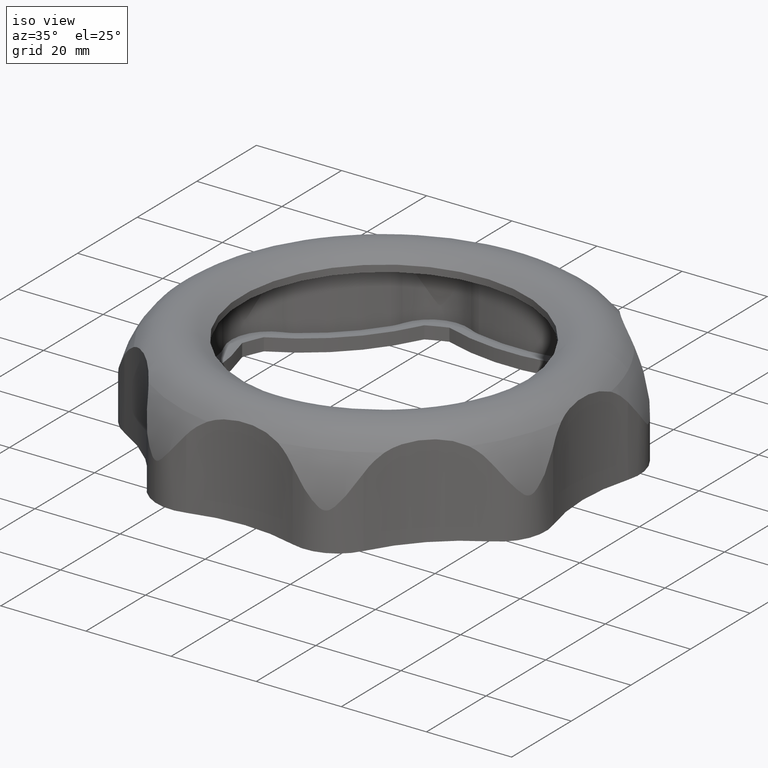
[diagram: clean part render]
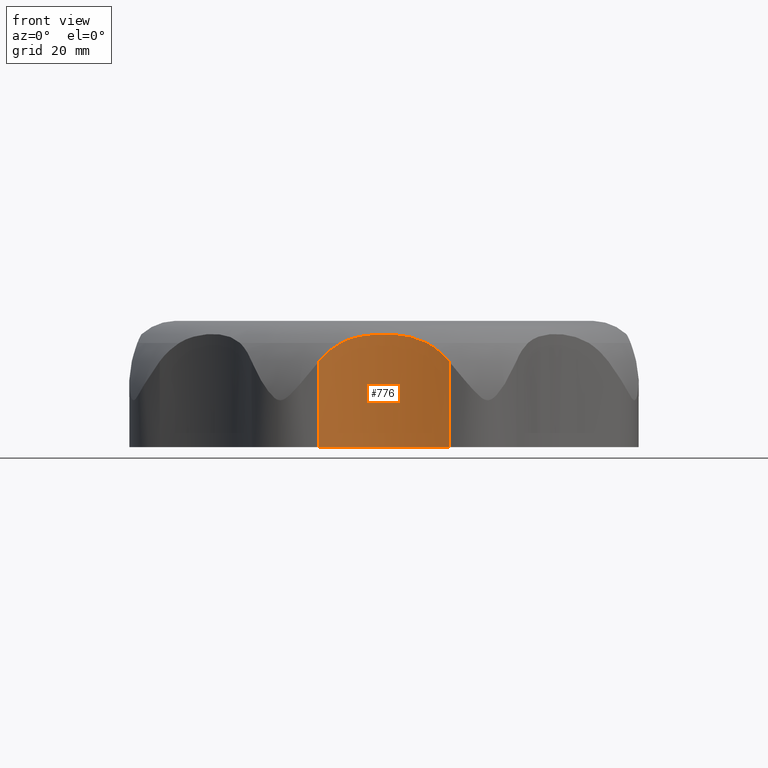
[diagram: tour spotlight — one face highlighted and labeled with its STEP entity id]
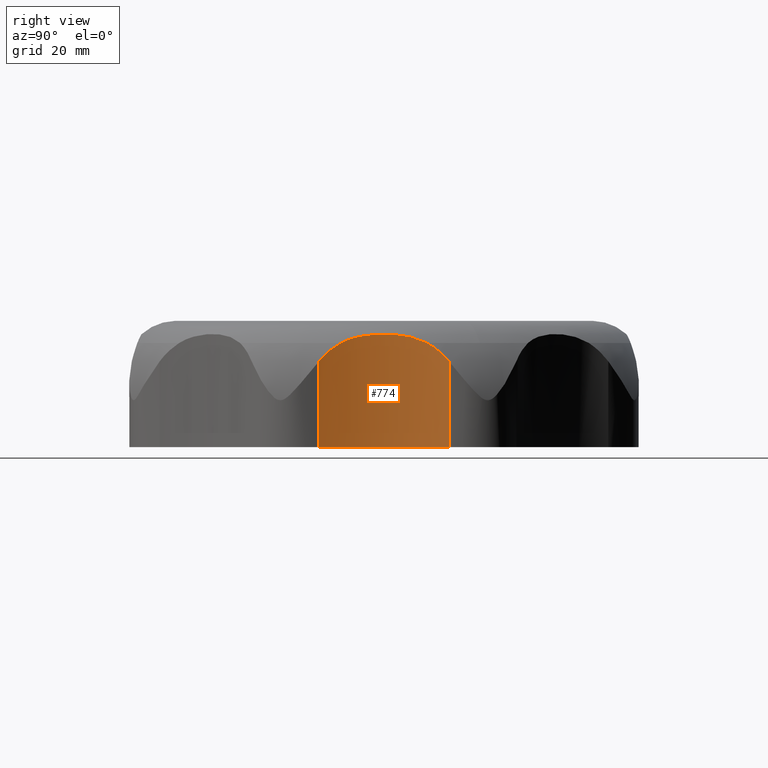
[diagram: tour spotlight — one face highlighted and labeled with its STEP entity id]
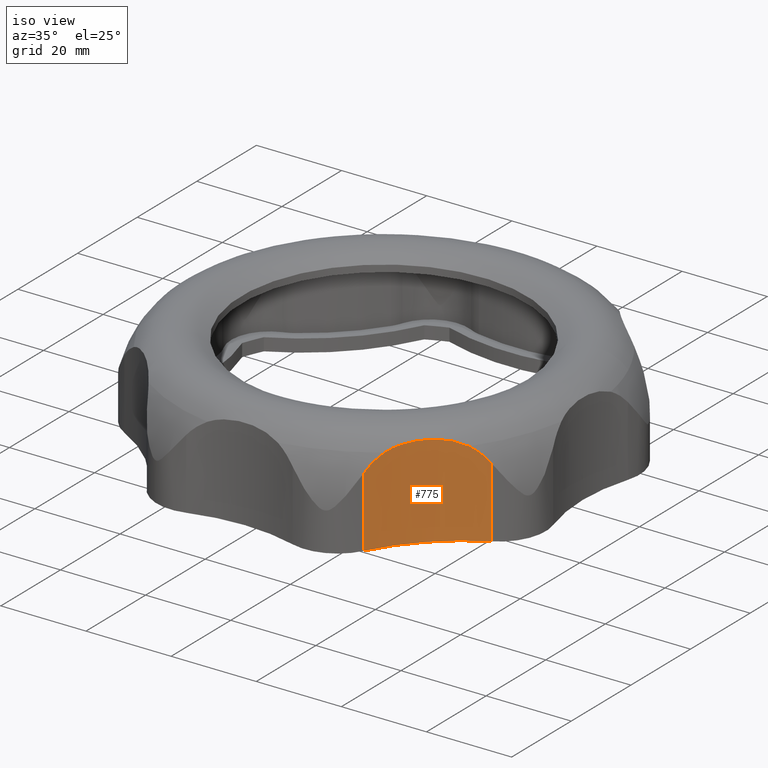
[diagram: tour spotlight — one face highlighted and labeled with its STEP entity id]
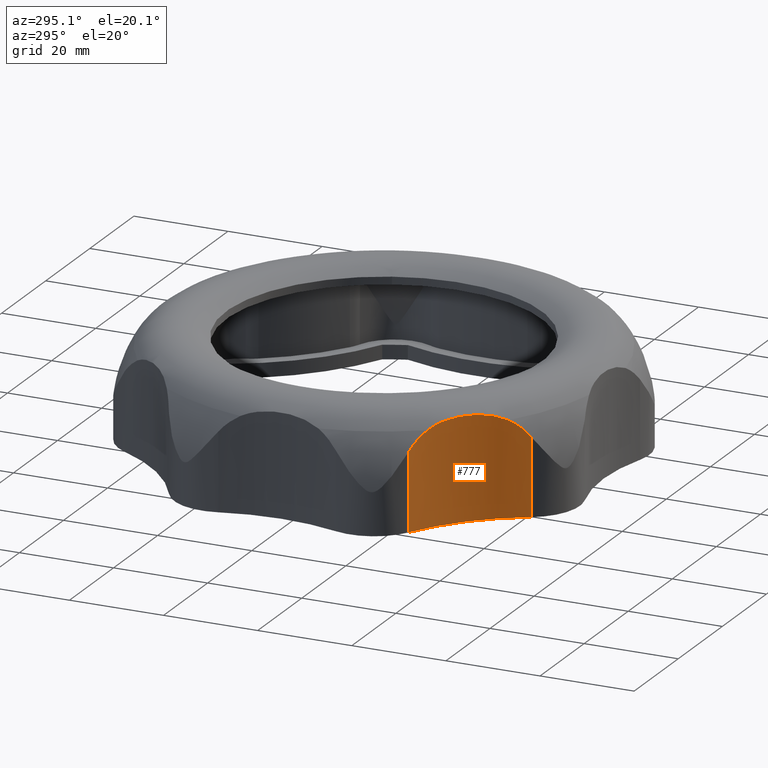
[diagram: tour spotlight — one face highlighted and labeled with its STEP entity id]
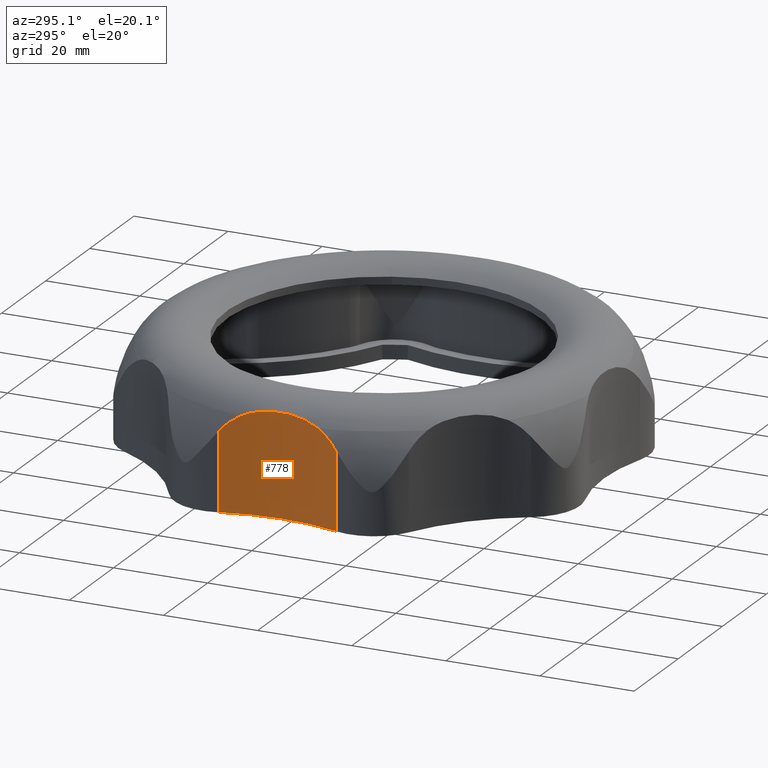
[diagram: tour spotlight — one face highlighted and labeled with its STEP entity id]
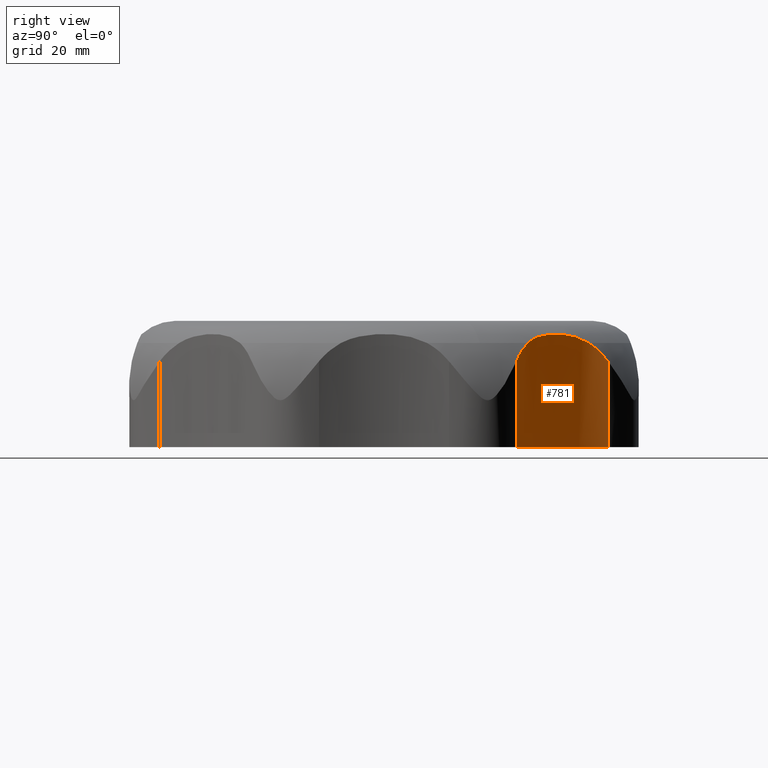
[diagram: tour spotlight — one face highlighted and labeled with its STEP entity id]
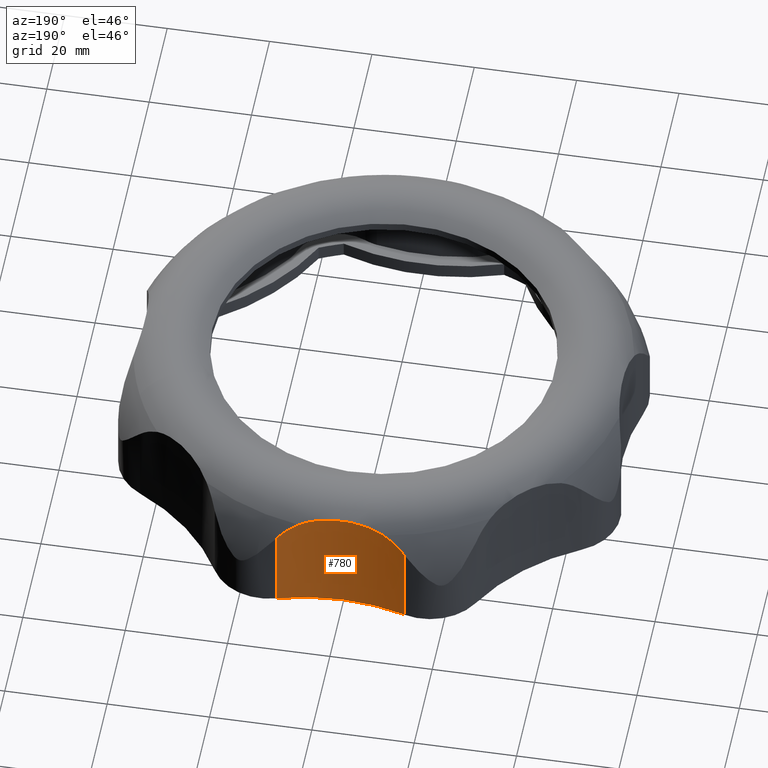
[diagram: tour spotlight — one face highlighted and labeled with its STEP entity id]
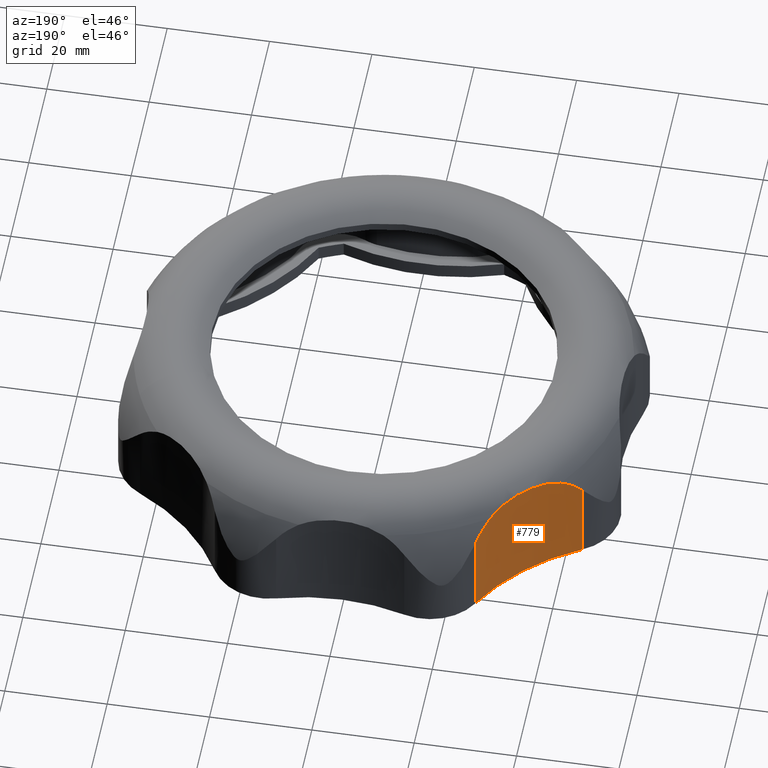
[diagram: tour spotlight — one face highlighted and labeled with its STEP entity id]
A machine part: a face-by-face anatomy tour. The part has 2249 B-rep faces; the first image is the clean iso view, then the 8 largest visible faces are spotlighted one at a time (largest first), each with its STEP entity span.

Face 1 — front view, entity #776. In plain terms, the highlighted cylindrical surface (partial cylindrical patch) has radius 42.5 mm, axis along (0, 0, -1).
Definition (entity closure, byte-faithful):
#776 = ADVANCED_FACE( '', ( #3751 ), #3752, .F. );
#3751 = FACE_OUTER_BOUND( '', #8459, .T. );
#3752 = CYLINDRICAL_SURFACE( '', #8460, 42.5000000000000 );
#8459 = EDGE_LOOP( '', ( #19063, #19064, #19065, #19066, #19067, #19068 ) );
#8460 = AXIS2_PLACEMENT_3D( '', #19069, #19070, #19071 );
#19063 = ORIENTED_EDGE( '', *, *, #34951, .F. );
#19064 = ORIENTED_EDGE( '', *, *, #31589, .T. );
#19065 = ORIENTED_EDGE( '', *, *, #34952, .T. );
#19066 = ORIENTED_EDGE( '', *, *, #34953, .T. );
#19067 = ORIENTED_EDGE( '', *, *, #34954, .T. );
#19068 = ORIENTED_EDGE( '', *, *, #34955, .T. );
#19069 = CARTESIAN_POINT( '', ( -1.28050660352930E-007, -89.1499997030150, -151.431544236596 ) );
#19070 = DIRECTION( '', ( 0.000000000000000, 0.000000000000000, -1.00000000000000 ) );
#19071 = DIRECTION( '', ( 0.467628644481239, 0.883925025587939, 0.000000000000000 ) );
#31589 = EDGE_CURVE( '', #38243, #38241, #38244, .F. );
#34951 = EDGE_CURVE( '', #38243, #44277, #44278, .T. );
#34952 = EDGE_CURVE( '', #38241, #44279, #44280, .T. );
#34953 = EDGE_CURVE( '', #44279, #44281, #44282, .T. );
#34954 = EDGE_CURVE( '', #44281, #44283, #44284, .T. );
#34955 = EDGE_CURVE( '', #44283, #44277, #44285, .T. );
#38241 = VERTEX_POINT( '', #49322 );
#38243 = VERTEX_POINT( '', #49324 );
#38244 = CIRCLE( '', #49325, 42.5000000000000 );
#44277 = VERTEX_POINT( '', #64937 );
#44278 = LINE( '', #64938, #64939 );
#44279 = VERTEX_POINT( '', #64940 );
#44280 = LINE( '', #64941, #64942 );
#44281 = VERTEX_POINT( '', #64943 );
#44282 = B_SPLINE_CURVE_WITH_KNOTS( '', 3, ( #64944, #64945, #64946, #64947, #64948, #64949 ), .UNSPECIFIED., .F., .F., ( 4, 2, 4 ), ( 3.92776466774515E-007, 0.00279223858319748, 0.00558408438992818 ), .UNSPECIFIED. );
#44283 = VERTEX_POINT( '', #64950 );
#44284 = B_SPLINE_CURVE_WITH_KNOTS( '', 3, ( #64951, #64952, #64953, #64954, #64955, #64956, #64957, #64958, #64959, #64960, #64961, #64962, #64963, #64964, #64965, #64966, #64967, #64968, #64969, #64970, #64971 ), .UNSPECIFIED., .F., .F., ( 4, 2, 2, 2, 2, 1, 2, 2, 2, 2, 4 ), ( 4.28055029115237E-007, 0.00214610810277965, 0.00429178815053019, 0.00536462817440545, 0.00643746819828072, 0.00858314824603125, 0.0107288282937818, 0.0118016683176571, 0.0128745083415323, 0.0150201883892828, 0.0171658684370334 ), .UNSPECIFIED. );
#44285 = B_SPLINE_CURVE_WITH_KNOTS( '', 3, ( #64972, #64973, #64974, #64975, #64976, #64977 ), .UNSPECIFIED., .F., .F., ( 4, 2, 4 ), ( 4.07933528638321E-007, 0.00279225364803668, 0.00558409936254472 ), .UNSPECIFIED. );
#49322 = CARTESIAN_POINT( '', ( 12.5105546196679, -48.5330571801671, -0.000342076785297268 ) );
#49324 = CARTESIAN_POINT( '', ( -12.5105546425721, -48.5330571083393, -0.000342076785297268 ) );
#49325 = AXIS2_PLACEMENT_3D( '', #77681, #77682, #77683 );
#64937 = CARTESIAN_POINT( '', ( -12.5105546425721, -48.5330571083393, 16.5159050591941 ) );
#64938 = CARTESIAN_POINT( '', ( -12.5105546425721, -48.5330571083393, -151.431544236596 ) );
#64939 = VECTOR( '', #78628, 1000.00000000000 );
#64940 = CARTESIAN_POINT( '', ( 12.5105546196564, -48.5330571801634, 16.5159049165734 ) );
#64941 = CARTESIAN_POINT( '', ( 12.5105546196679, -48.5330571801671, -151.431544236596 ) );
#64942 = VECTOR( '', #78629, 1000.00000000000 );
#64943 = CARTESIAN_POINT( '', ( 8.30812094017372, -47.4699670216973, 20.0354222867238 ) );
#64944 = CARTESIAN_POINT( '', ( 12.5105546196564, -48.5330571801635, 16.5159049165734 ) );
#64945 = CARTESIAN_POINT( '', ( 11.9226294643002, -48.3519684672575, 17.2356169329939 ) );
#64946 = CARTESIAN_POINT( '', ( 11.2776736658173, -48.1672367767255, 17.8861318276183 ) );
#64947 = CARTESIAN_POINT( '', ( 9.87710021068136, -47.8073380546406, 19.0579162200963 ) );
#64948 = CARTESIAN_POINT( '', ( 9.12147568394501, -47.6320938063456, 19.5791541911585 ) );
#64949 = CARTESIAN_POINT( '', ( 8.30812094017378, -47.4699670216971, 20.0354222867238 ) );
#64950 = CARTESIAN_POINT( '', ( -8.30812107654083, -47.4699669978304, 20.0354222867238 ) );
#64951 = CARTESIAN_POINT( '', ( 8.30812094017375, -47.4699670216971, 20.0354222867238 ) );
#64952 = CARTESIAN_POINT( '', ( 7.67358310631694, -47.3434839839712, 20.3695836391400 ) );
#64953 = CARTESIAN_POINT( '', ( 7.01679564391053, -47.2277125650713, 20.6361668065205 ) );
#64954 = CARTESIAN_POINT( '', ( 5.67031305845238, -47.0244595860197, 21.0750735604591 ) );
#64955 = CARTESIAN_POINT( '', ( 4.98046869187711, -46.9369083760573, 21.2468791700483 ) );
#64956 = CARTESIAN_POINT( '', ( 3.92503542748677, -46.8301564477659, 21.4485027995051 ) );
#64957 = CARTESIAN_POINT( '', ( 3.56870010809666, -46.7985832619481, 21.5063839527042 ) );
#64958 = CARTESIAN_POINT( '', ( 2.85493722327679, -46.7444879308392, 21.6039513524359 ) );
#64959 = CARTESIAN_POINT( '', ( 2.49806526768189, -46.7219742401259, 21.6436323643545 ) );
#64960 = CARTESIAN_POINT( '', ( 1.42747573915849, -46.6679680395903, 21.7379228765241 ) );
#64961 = CARTESIAN_POINT( '', ( 9.27569052343834E-005, -46.6320355071781, 21.7982539127722 ) );
#64962 = CARTESIAN_POINT( '', ( -1.42715920658433, -46.6679596797456, 21.7379367797570 ) );
#64963 = CARTESIAN_POINT( '', ( -2.49754591753155, -46.7219442217303, 21.6436851038389 ) );
#64964 = CARTESIAN_POINT( '', ( -2.85433271356892, -46.7444481045424, 21.6040218994468 ) );
#64965 = CARTESIAN_POINT( '', ( -3.56788734962791, -46.7985156481016, 21.5065071510471 ) );
#64966 = CARTESIAN_POINT( '', ( -3.92438649009241, -46.8300953470990, 21.4486163551065 ) );
#64967 = CARTESIAN_POINT( '', ( -4.98014078199219, -46.9368660700235, 21.2469626920374 ) );
#64968 = CARTESIAN_POINT( '', ( -5.67014100924044, -47.0244348801618, 21.0751254588186 ) );
#64969 = CARTESIAN_POINT( '', ( -7.01680909414286, -47.2277132530811, 20.6361666937022 ) );
#64970 = CARTESIAN_POINT( '', ( -7.67362615245231, -47.3434925152450, 20.3695610417363 ) );
#64971 = CARTESIAN_POINT( '', ( -8.30812107654084, -47.4699669978304, 20.0354222867238 ) );
#64972 = CARTESIAN_POINT( '', ( -8.30812107654086, -47.4699669978304, 20.0354222867238 ) );
#64973 = CARTESIAN_POINT( '', ( -9.12147534279767, -47.6320936848661, 19.5791544592913 ) );
#64974 = CARTESIAN_POINT( '', ( -9.87709968641715, -47.8073378680666, 19.0579167044238 ) );
#64975 = CARTESIAN_POINT( '', ( -11.2776731635968, -48.1672365679103, 17.8861324327638 ) );
#64976 = CARTESIAN_POINT( '', ( -11.9226291694389, -48.3519683012493, 17.2356174455006 ) );
#64977 = CARTESIAN_POINT( '', ( -12.5105546425721, -48.5330571083392, 16.5159050591941 ) );
#77681 = CARTESIAN_POINT( '', ( -1.28050660352930E-007, -89.1499997030150, -0.000342076785297268 ) );
#77682 = DIRECTION( '', ( -3.31376091451462E-017, -8.00012654228307E-017, 1.00000000000000 ) );
#77683 = DIRECTION( '', ( 0.923879532511287, 0.382683432365090, 6.12303176911189E-017 ) );
#78628 = DIRECTION( '', ( 0.000000000000000, 0.000000000000000, 1.00000000000000 ) );
#78629 = DIRECTION( '', ( 0.000000000000000, 0.000000000000000, 1.00000000000000 ) );

Face 2 — right view, entity #774. In plain terms, the highlighted cylindrical surface (partial cylindrical patch) has radius 42.5 mm, axis along (0, 0, -1).
Definition (entity closure, byte-faithful):
#774 = ADVANCED_FACE( '', ( #3747 ), #3748, .F. );
#3747 = FACE_OUTER_BOUND( '', #8455, .T. );
#3748 = CYLINDRICAL_SURFACE( '', #8456, 42.5000000000000 );
#8455 = EDGE_LOOP( '', ( #19045, #19046, #19047, #19048, #19049, #19050 ) );
#8456 = AXIS2_PLACEMENT_3D( '', #19051, #19052, #19053 );
#19045 = ORIENTED_EDGE( '', *, *, #34942, .F. );
#19046 = ORIENTED_EDGE( '', *, *, #31585, .T. );
#19047 = ORIENTED_EDGE( '', *, *, #34943, .T. );
#19048 = ORIENTED_EDGE( '', *, *, #33731, .T. );
#19049 = ORIENTED_EDGE( '', *, *, #34944, .T. );
#19050 = ORIENTED_EDGE( '', *, *, #34945, .T. );
#19051 = CARTESIAN_POINT( '', ( 89.1499997030151, -1.28050736680763E-007, -151.431544236596 ) );
#19052 = DIRECTION( '', ( 0.000000000000000, 0.000000000000000, -1.00000000000000 ) );
#19053 = DIRECTION( '', ( 0.467628644481239, 0.883925025587939, 0.000000000000000 ) );
#31585 = EDGE_CURVE( '', #38235, #38232, #38236, .F. );
#33731 = EDGE_CURVE( '', #42428, #42426, #42429, .T. );
#34942 = EDGE_CURVE( '', #38235, #44262, #44263, .T. );
#34943 = EDGE_CURVE( '', #38232, #42428, #44264, .T. );
#34944 = EDGE_CURVE( '', #42426, #44265, #44266, .T. );
#34945 = EDGE_CURVE( '', #44265, #44262, #44267, .T. );
#38232 = VERTEX_POINT( '', #49313 );
#38235 = VERTEX_POINT( '', #49316 );
#38236 = CIRCLE( '', #49317, 42.5000000000000 );
#42426 = VERTEX_POINT( '', #60233 );
#42428 = VERTEX_POINT( '', #60235 );
#42429 = B_SPLINE_CURVE_WITH_KNOTS( '', 3, ( #60236, #60237, #60238, #60239, #60240, #60241 ), .UNSPECIFIED., .F., .F., ( 4, 2, 4 ), ( 3.92776449082882E-007, 0.00279223858318895, 0.00558408438992881 ), .UNSPECIFIED. );
#44262 = VERTEX_POINT( '', #64863 );
#44263 = LINE( '', #64864, #64865 );
#44264 = LINE( '', #64866, #64867 );
#44265 = VERTEX_POINT( '', #64868 );
#44266 = B_SPLINE_CURVE_WITH_KNOTS( '', 3, ( #64869, #64870, #64871, #64872, #64873, #64874, #64875, #64876, #64877, #64878, #64879, #64880, #64881, #64882, #64883, #64884, #64885, #64886, #64887, #64888, #64889 ), .UNSPECIFIED., .F., .F., ( 4, 2, 2, 2, 2, 1, 2, 2, 2, 2, 4 ), ( 4.28055029562931E-007, 0.00214610810278005, 0.00429178815053054, 0.00536462817440578, 0.00643746819828102, 0.00858314824603151, 0.0107288282937820, 0.0118016683176572, 0.0128745083415325, 0.0150201883892830, 0.0171658684370335 ), .UNSPECIFIED. );
#44267 = B_SPLINE_CURVE_WITH_KNOTS( '', 3, ( #64890, #64891, #64892, #64893, #64894, #64895 ), .UNSPECIFIED., .F., .F., ( 4, 2, 4 ), ( 4.07933528631182E-007, 0.00279225364803670, 0.00558409936254476 ), .UNSPECIFIED. );
#49313 = CARTESIAN_POINT( '', ( 48.5330571801669, 12.5105546196676, -0.000342076785356249 ) );
#49316 = CARTESIAN_POINT( '', ( 48.5330571083392, -12.5105546425721, -0.000342076785297268 ) );
#49317 = AXIS2_PLACEMENT_3D( '', #77669, #77670, #77671 );
#60233 = CARTESIAN_POINT( '', ( 47.4699670216971, 8.30812094017340, 20.0354222867239 ) );
#60235 = CARTESIAN_POINT( '', ( 48.5330571801669, 12.5105546196676, 16.5159049165593 ) );
#60236 = CARTESIAN_POINT( '', ( 48.5330571801670, 12.5105546196677, 16.5159049165595 ) );
#60237 = CARTESIAN_POINT( '', ( 48.3519684672605, 11.9226294643103, 17.2356169329831 ) );
#60238 = CARTESIAN_POINT( '', ( 48.1672367767279, 11.2776736658258, 17.8861318276104 ) );
#60239 = CARTESIAN_POINT( '', ( 47.8073380546418, 9.87710021068600, 19.0579162200930 ) );
#60240 = CARTESIAN_POINT( '', ( 47.6320938063462, 9.12147568394735, 19.5791541911571 ) );
#60241 = CARTESIAN_POINT( '', ( 47.4699670216971, 8.30812094017344, 20.0354222867239 ) );
#64863 = CARTESIAN_POINT( '', ( 48.5330571083392, -12.5105546425721, 16.5159050591941 ) );
#64864 = CARTESIAN_POINT( '', ( 48.5330571083392, -12.5105546425721, -151.431544236596 ) );
#64865 = VECTOR( '', #78624, 1000.00000000000 );
#64866 = CARTESIAN_POINT( '', ( 48.5330571801669, 12.5105546196676, -151.431544236596 ) );
#64867 = VECTOR( '', #78625, 1000.00000000000 );
#64868 = CARTESIAN_POINT( '', ( 47.4699669978305, -8.30812107654078, 20.0354222867239 ) );
#64869 = CARTESIAN_POINT( '', ( 47.4699670216971, 8.30812094017341, 20.0354222867239 ) );
#64870 = CARTESIAN_POINT( '', ( 47.3434839839712, 7.67358310631660, 20.3695836391401 ) );
#64871 = CARTESIAN_POINT( '', ( 47.2277125650713, 7.01679564391021, 20.6361668065206 ) );
#64872 = CARTESIAN_POINT( '', ( 47.0244595860197, 5.67031305845208, 21.0750735604591 ) );
#64873 = CARTESIAN_POINT( '', ( 46.9369083760573, 4.98046869187683, 21.2468791700483 ) );
#64874 = CARTESIAN_POINT( '', ( 46.8301564477659, 3.92503542748650, 21.4485027995051 ) );
#64875 = CARTESIAN_POINT( '', ( 46.7985832619481, 3.56870010809641, 21.5063839527042 ) );
#64876 = CARTESIAN_POINT( '', ( 46.7444879308392, 2.85493722327656, 21.6039513524359 ) );
#64877 = CARTESIAN_POINT( '', ( 46.7219742401260, 2.49806526768167, 21.6436323643545 ) );
#64878 = CARTESIAN_POINT( '', ( 46.6679680395904, 1.42747573915830, 21.7379228765241 ) );
#64879 = CARTESIAN_POINT( '', ( 46.6320355071781, 9.27569050758730E-005, 21.7982539127721 ) );
#64880 = CARTESIAN_POINT( '', ( 46.6679596797456, -1.42715920658445, 21.7379367797569 ) );
#64881 = CARTESIAN_POINT( '', ( 46.7219442217304, -2.49754591753164, 21.6436851038388 ) );
#64882 = CARTESIAN_POINT( '', ( 46.7444481045424, -2.85433271356900, 21.6040218994467 ) );
#64883 = CARTESIAN_POINT( '', ( 46.7985156481016, -3.56788734962797, 21.5065071510470 ) );
#64884 = CARTESIAN_POINT( '', ( 46.8300953470990, -3.92438649009246, 21.4486163551065 ) );
#64885 = CARTESIAN_POINT( '', ( 46.9368660700236, -4.98014078199222, 21.2469626920374 ) );
#64886 = CARTESIAN_POINT( '', ( 47.0244348801618, -5.67014100924044, 21.0751254588186 ) );
#64887 = CARTESIAN_POINT( '', ( 47.2277132530811, -7.01680909414284, 20.6361666937022 ) );
#64888 = CARTESIAN_POINT( '', ( 47.3434925152450, -7.67362615245227, 20.3695610417363 ) );
#64889 = CARTESIAN_POINT( '', ( 47.4699669978304, -8.30812107654078, 20.0354222867238 ) );
#64890 = CARTESIAN_POINT( '', ( 47.4699669978304, -8.30812107654078, 20.0354222867238 ) );
#64891 = CARTESIAN_POINT( '', ( 47.6320936848661, -9.12147534279760, 19.5791544592913 ) );
#64892 = CARTESIAN_POINT( '', ( 47.8073378680666, -9.87709968641710, 19.0579167044237 ) );
#64893 = CARTESIAN_POINT( '', ( 48.1672365679103, -11.2776731635968, 17.8861324327638 ) );
#64894 = CARTESIAN_POINT( '', ( 48.3519683012494, -11.9226291694389, 17.2356174455005 ) );
#64895 = CARTESIAN_POINT( '', ( 48.5330571083392, -12.5105546425721, 16.5159050591941 ) );
#77669 = CARTESIAN_POINT( '', ( 89.1499997030151, -1.28050736680763E-007, -0.000342076785297268 ) );
#77670 = DIRECTION( '', ( -3.31376091451462E-017, -8.00012654228307E-017, 1.00000000000000 ) );
#77671 = DIRECTION( '', ( 0.923879532511287, 0.382683432365090, 6.12303176911189E-017 ) );
#78624 = DIRECTION( '', ( 0.000000000000000, 0.000000000000000, 1.00000000000000 ) );
#78625 = DIRECTION( '', ( 0.000000000000000, 0.000000000000000, 1.00000000000000 ) );

Face 3 — iso view, entity #775. In plain terms, the highlighted cylindrical surface (partial cylindrical patch) has radius 42.5 mm, axis along (0, 0, -1).
Definition (entity closure, byte-faithful):
#775 = ADVANCED_FACE( '', ( #3749 ), #3750, .F. );
#3749 = FACE_OUTER_BOUND( '', #8457, .T. );
#3750 = CYLINDRICAL_SURFACE( '', #8458, 42.5000000000000 );
#8457 = EDGE_LOOP( '', ( #19054, #19055, #19056, #19057, #19058, #19059 ) );
#8458 = AXIS2_PLACEMENT_3D( '', #19060, #19061, #19062 );
#19054 = ORIENTED_EDGE( '', *, *, #34946, .F. );
#19055 = ORIENTED_EDGE( '', *, *, #31587, .T. );
#19056 = ORIENTED_EDGE( '', *, *, #34947, .T. );
#19057 = ORIENTED_EDGE( '', *, *, #34948, .T. );
#19058 = ORIENTED_EDGE( '', *, *, #34949, .T. );
#19059 = ORIENTED_EDGE( '', *, *, #34950, .T. );
#19060 = CARTESIAN_POINT( '', ( 63.0385694233262, -63.0385692422351, -151.431544236596 ) );
#19061 = DIRECTION( '', ( 0.000000000000000, 0.000000000000000, -1.00000000000000 ) );
#19062 = DIRECTION( '', ( 0.467628644481239, 0.883925025587939, 0.000000000000000 ) );
#31587 = EDGE_CURVE( '', #38239, #38237, #38240, .F. );
#34946 = EDGE_CURVE( '', #38239, #44268, #44269, .T. );
#34947 = EDGE_CURVE( '', #38237, #44270, #44271, .T. );
#34948 = EDGE_CURVE( '', #44270, #44272, #44273, .T. );
#34949 = EDGE_CURVE( '', #44272, #44274, #44275, .T. );
#34950 = EDGE_CURVE( '', #44274, #44268, #44276, .T. );
#38237 = VERTEX_POINT( '', #49318 );
#38239 = VERTEX_POINT( '', #49320 );
#38240 = CIRCLE( '', #49321, 42.5000000000000 );
#44268 = VERTEX_POINT( '', #64896 );
#44269 = LINE( '', #64897, #64898 );
#44270 = VERTEX_POINT( '', #64899 );
#44271 = LINE( '', #64900, #64901 );
#44272 = VERTEX_POINT( '', #64902 );
#44273 = B_SPLINE_CURVE_WITH_KNOTS( '', 3, ( #64903, #64904, #64905, #64906, #64907, #64908 ), .UNSPECIFIED., .F., .F., ( 4, 2, 4 ), ( 3.03891219703925E-007, 0.00279214960571667, 0.00558399532021365 ), .UNSPECIFIED. );
#44274 = VERTEX_POINT( '', #64909 );
#44275 = B_SPLINE_CURVE_WITH_KNOTS( '', 3, ( #64910, #64911, #64912, #64913, #64914, #64915, #64916, #64917, #64918, #64919, #64920, #64921, #64922, #64923, #64924, #64925, #64926, #64927, #64928, #64929, #64930 ), .UNSPECIFIED., .F., .F., ( 4, 2, 2, 2, 2, 1, 2, 2, 2, 2, 4 ), ( 4.28055029222356E-007, 0.00214610810277973, 0.00429178815053024, 0.00536462817440549, 0.00643746819828075, 0.00858314824603126, 0.0107288282937818, 0.0118016683176570, 0.0128745083415323, 0.0150201883892828, 0.0171658684370333 ), .UNSPECIFIED. );
#44276 = B_SPLINE_CURVE_WITH_KNOTS( '', 3, ( #64931, #64932, #64933, #64934, #64935, #64936 ), .UNSPECIFIED., .F., .F., ( 4, 2, 4 ), ( 4.07933302337395E-007, 0.00279225374004208, 0.00558409954678182 ), .UNSPECIFIED. );
#49318 = CARTESIAN_POINT( '', ( 43.1643518171882, -25.4717557688532, -0.000342076785297268 ) );
#49320 = CARTESIAN_POINT( '', ( 25.4717558358389, -43.1643518517824, -0.000342076785297268 ) );
#49321 = AXIS2_PLACEMENT_3D( '', #77675, #77676, #77677 );
#64896 = CARTESIAN_POINT( '', ( 25.4717558358388, -43.1643518517822, 16.5159049165594 ) );
#64897 = CARTESIAN_POINT( '', ( 25.4717558358389, -43.1643518517824, -151.431544236596 ) );
#64898 = VECTOR( '', #78626, 1000.00000000000 );
#64899 = CARTESIAN_POINT( '', ( 43.1643518171753, -25.4717557688600, 16.5159050592113 ) );
#64900 = CARTESIAN_POINT( '', ( 43.1643518171882, -25.4717557688532, -151.431544236596 ) );
#64901 = VECTOR( '', #78627, 1000.00000000000 );
#64902 = CARTESIAN_POINT( '', ( 39.4410643190084, -27.6916068147266, 20.0354222867239 ) );
#64903 = CARTESIAN_POINT( '', ( 43.1643518171752, -25.4717557688600, 16.5159050592113 ) );
#64904 = CARTESIAN_POINT( '', ( 42.6205766048016, -25.7594327342540, 17.2356174455138 ) );
#64905 = CARTESIAN_POINT( '', ( 42.0338987781613, -26.0848604382067, 17.8861324327737 ) );
#64906 = CARTESIAN_POINT( '', ( 40.7890569637022, -26.8207286302685, 19.0579167044279 ) );
#64907 = CARTESIAN_POINT( '', ( 40.1308335159971, -27.2311193773655, 19.5791544592931 ) );
#64908 = CARTESIAN_POINT( '', ( 39.4410643190084, -27.6916068147266, 20.0354222867238 ) );
#64909 = CARTESIAN_POINT( '', ( 27.6916069280293, -39.4410642394586, 20.0354222867238 ) );
#64910 = CARTESIAN_POINT( '', ( 39.4410643190084, -27.6916068147266, 20.0354222867238 ) );
#64911 = CARTESIAN_POINT( '', ( 38.9029413011197, -28.0508558078309, 20.3695836391400 ) );
#64912 = CARTESIAN_POINT( '', ( 38.3566596783812, -28.4334119224945, 20.6361668065205 ) );
#64913 = CARTESIAN_POINT( '', ( 37.2608311539926, -29.2417973327857, 21.0750735604590 ) );
#64914 = CARTESIAN_POINT( '', ( 36.7111294713818, -29.6676829096680, 21.2468791700482 ) );
#64915 = CARTESIAN_POINT( '', ( 35.8893404425691, -30.3385019179695, 21.4485027995050 ) );
#64916 = CARTESIAN_POINT( '', ( 35.6150477087163, -30.5681434256790, 21.5063839527042 ) );
#64917 = CARTESIAN_POINT( '', ( 35.0720899585832, -31.0345988277965, 21.6039513524359 ) );
#64918 = CARTESIAN_POINT( '', ( 34.8038237960731, -31.2710258250107, 21.6436323643545 ) );
#64919 = CARTESIAN_POINT( '', ( 34.0086145320271, -31.9898587921565, 21.7379228765241 ) );
#64920 = CARTESIAN_POINT( '', ( 32.9738942114181, -32.9737628438966, 21.7982539127721 ) );
#64921 = CARTESIAN_POINT( '', ( 31.9900768985759, -34.0083846145990, 21.7379367797569 ) );
#64922 = CARTESIAN_POINT( '', ( 31.2713720347738, -34.8034351541830, 21.6436851038388 ) );
#64923 = CARTESIAN_POINT( '', ( 31.0349983207679, -35.0716341659174, 21.6040218994467 ) );
#64924 = CARTESIAN_POINT( '', ( 30.5686705271156, -35.6144250158542, 21.5065071510471 ) );
#64925 = CARTESIAN_POINT( '', ( 30.3389177875031, -35.8888381955327, 21.4486163551065 ) );
#64926 = CARTESIAN_POINT( '', ( 29.6678850730076, -36.7108675187417, 21.2469626920374 ) );
#64927 = CARTESIAN_POINT( '', ( 29.2419017343488, -37.2606918591421, 21.0751254588186 ) );
#64928 = CARTESIAN_POINT( '', ( 28.4334031186150, -38.3566695122665, 20.6361666937022 ) );
#64929 = CARTESIAN_POINT( '', ( 28.0508316256516, -38.9029776106920, 20.3695610417363 ) );
#64930 = CARTESIAN_POINT( '', ( 27.6916069280292, -39.4410642394585, 20.0354222867238 ) );
#64931 = CARTESIAN_POINT( '', ( 27.6916069280291, -39.4410642394586, 20.0354222867238 ) );
#64932 = CARTESIAN_POINT( '', ( 27.2311192220337, -40.1308338431286, 19.5791541911570 ) );
#64933 = CARTESIAN_POINT( '', ( 26.8207283914797, -40.7890574663501, 19.0579162200930 ) );
#64934 = CARTESIAN_POINT( '', ( 26.0848602307280, -42.0338992809567, 17.8861318276103 ) );
#64935 = CARTESIAN_POINT( '', ( 25.7594326431297, -42.6205769307064, 17.2356169329831 ) );
#64936 = CARTESIAN_POINT( '', ( 25.4717558358388, -43.1643518517823, 16.5159049165595 ) );
#77675 = CARTESIAN_POINT( '', ( 63.0385694233262, -63.0385692422351, -0.000342076785297268 ) );
#77676 = DIRECTION( '', ( -3.31376091451462E-017, -8.00012654228307E-017, 1.00000000000000 ) );
#77677 = DIRECTION( '', ( 0.923879532511287, 0.382683432365090, 6.12303176911189E-017 ) );
#78626 = DIRECTION( '', ( 0.000000000000000, 0.000000000000000, 1.00000000000000 ) );
#78627 = DIRECTION( '', ( 0.000000000000000, 0.000000000000000, 1.00000000000000 ) );

Face 4 — auxiliary view, entity #777. In plain terms, the highlighted cylindrical surface (partial cylindrical patch) has radius 42.5 mm, axis along (0, 0, -1).
Definition (entity closure, byte-faithful):
#777 = ADVANCED_FACE( '', ( #3753 ), #3754, .F. );
#3753 = FACE_OUTER_BOUND( '', #8461, .T. );
#3754 = CYLINDRICAL_SURFACE( '', #8462, 42.5000000000000 );
#8461 = EDGE_LOOP( '', ( #19072, #19073, #19074, #19075, #19076, #19077 ) );
#8462 = AXIS2_PLACEMENT_3D( '', #19078, #19079, #19080 );
#19072 = ORIENTED_EDGE( '', *, *, #34956, .F. );
#19073 = ORIENTED_EDGE( '', *, *, #31591, .T. );
#19074 = ORIENTED_EDGE( '', *, *, #34957, .T. );
#19075 = ORIENTED_EDGE( '', *, *, #34958, .T. );
#19076 = ORIENTED_EDGE( '', *, *, #34959, .T. );
#19077 = ORIENTED_EDGE( '', *, *, #34960, .T. );
#19078 = CARTESIAN_POINT( '', ( -63.0385692422351, -63.0385694233262, -151.431544236596 ) );
#19079 = DIRECTION( '', ( 0.000000000000000, 0.000000000000000, -1.00000000000000 ) );
#19080 = DIRECTION( '', ( 0.467628644481239, 0.883925025587939, 0.000000000000000 ) );
#31591 = EDGE_CURVE( '', #38247, #38245, #38248, .F. );
#34956 = EDGE_CURVE( '', #38247, #44286, #44287, .T. );
#34957 = EDGE_CURVE( '', #38245, #44288, #44289, .T. );
#34958 = EDGE_CURVE( '', #44288, #44290, #44291, .T. );
#34959 = EDGE_CURVE( '', #44290, #44292, #44293, .T. );
#34960 = EDGE_CURVE( '', #44292, #44286, #44294, .T. );
#38245 = VERTEX_POINT( '', #49326 );
#38247 = VERTEX_POINT( '', #49328 );
#38248 = CIRCLE( '', #49329, 42.5000000000000 );
#44286 = VERTEX_POINT( '', #64978 );
#44287 = LINE( '', #64979, #64980 );
#44288 = VERTEX_POINT( '', #64981 );
#44289 = LINE( '', #64982, #64983 );
#44290 = VERTEX_POINT( '', #64984 );
#44291 = B_SPLINE_CURVE_WITH_KNOTS( '', 3, ( #64985, #64986, #64987, #64988, #64989, #64990, #64991, #64992 ), .UNSPECIFIED., .F., .F., ( 4, 2, 2, 4 ), ( -0.0228512921564345, -0.0200630544205981, -0.0186689355526798, -0.0172748166847616 ), .UNSPECIFIED. );
#44292 = VERTEX_POINT( '', #64993 );
#44293 = B_SPLINE_CURVE_WITH_KNOTS( '', 3, ( #64994, #64995, #64996, #64997, #64998, #64999, #65000, #65001, #65002, #65003, #65004, #65005, #65006, #65007, #65008, #65009, #65010, #65011, #65012, #65013, #65014 ), .UNSPECIFIED., .F., .F., ( 4, 2, 2, 2, 2, 1, 2, 2, 2, 2, 4 ), ( 4.28055029184136E-007, 0.00214610810277975, 0.00429178815053032, 0.00536462817440560, 0.00643746819828088, 0.00858314824603145, 0.0107288282937820, 0.0118016683176573, 0.0128745083415326, 0.0150201883892831, 0.0171658684370337 ), .UNSPECIFIED. );
#44294 = B_SPLINE_CURVE_WITH_KNOTS( '', 3, ( #65015, #65016, #65017, #65018, #65019, #65020 ), .UNSPECIFIED., .F., .F., ( 4, 2, 4 ), ( 4.07933302612883E-007, 0.00279225374004220, 0.00558409954678178 ), .UNSPECIFIED. );
#49326 = CARTESIAN_POINT( '', ( -25.4717557688530, -43.1643518171882, -0.000342076785297268 ) );
#49328 = CARTESIAN_POINT( '', ( -43.1643518517822, -25.4717558358389, -0.000342076785297268 ) );
#49329 = AXIS2_PLACEMENT_3D( '', #77687, #77688, #77689 );
#64978 = CARTESIAN_POINT( '', ( -43.1643518517822, -25.4717558358389, 16.5159049165595 ) );
#64979 = CARTESIAN_POINT( '', ( -43.1643518517823, -25.4717558358389, -151.431544236596 ) );
#64980 = VECTOR( '', #78630, 1000.00000000000 );
#64981 = CARTESIAN_POINT( '', ( -25.4717557688605, -43.1643518171742, 16.5159050592127 ) );
#64982 = CARTESIAN_POINT( '', ( -25.4717557688530, -43.1643518171882, -151.431544236596 ) );
#64983 = VECTOR( '', #78631, 1000.00000000000 );
#64984 = CARTESIAN_POINT( '', ( -27.6916068147265, -39.4410643190084, 20.0354222867238 ) );
#64985 = CARTESIAN_POINT( '', ( -25.4717557688605, -43.1643518171742, 16.5159050592126 ) );
#64986 = CARTESIAN_POINT( '', ( -25.7557567904768, -42.6275249786675, 17.2264209418443 ) );
#64987 = CARTESIAN_POINT( '', ( -26.0791132405318, -42.0438915888249, 17.8759871779194 ) );
#64988 = CARTESIAN_POINT( '', ( -26.6335241805549, -41.1056109957423, 18.7603040432738 ) );
#64989 = CARTESIAN_POINT( '', ( -26.8307917129064, -40.7809827702660, 19.0410518682789 ) );
#64990 = CARTESIAN_POINT( '', ( -27.2470265940477, -40.1176446580636, 19.5669071348985 ) );
#64991 = CARTESIAN_POINT( '', ( -27.4644788250374, -39.7812818327791, 19.8103755514684 ) );
#64992 = CARTESIAN_POINT( '', ( -27.6916068147266, -39.4410643190084, 20.0354222867238 ) );
#64993 = CARTESIAN_POINT( '', ( -39.4410642394587, -27.6916069280288, 20.0354222867238 ) );
#64994 = CARTESIAN_POINT( '', ( -27.6916068147266, -39.4410643190084, 20.0354222867238 ) );
#64995 = CARTESIAN_POINT( '', ( -28.0508558078309, -38.9029413011197, 20.3695836391400 ) );
#64996 = CARTESIAN_POINT( '', ( -28.4334119224945, -38.3566596783812, 20.6361668065205 ) );
#64997 = CARTESIAN_POINT( '', ( -29.2417973327857, -37.2608311539926, 21.0750735604590 ) );
#64998 = CARTESIAN_POINT( '', ( -29.6676829096681, -36.7111294713818, 21.2468791700482 ) );
#64999 = CARTESIAN_POINT( '', ( -30.3385019179695, -35.8893404425690, 21.4485027995050 ) );
#65000 = CARTESIAN_POINT( '', ( -30.5681434256791, -35.6150477087163, 21.5063839527042 ) );
#65001 = CARTESIAN_POINT( '', ( -31.0345988277966, -35.0720899585832, 21.6039513524359 ) );
#65002 = CARTESIAN_POINT( '', ( -31.2710258250108, -34.8038237960731, 21.6436323643545 ) );
#65003 = CARTESIAN_POINT( '', ( -31.9898587921566, -34.0086145320270, 21.7379228765241 ) );
#65004 = CARTESIAN_POINT( '', ( -32.9737628438967, -32.9738942114180, 21.7982539127721 ) );
#65005 = CARTESIAN_POINT( '', ( -34.0083846145992, -31.9900768985758, 21.7379367797569 ) );
#65006 = CARTESIAN_POINT( '', ( -34.8034351541832, -31.2713720347737, 21.6436851038388 ) );
#65007 = CARTESIAN_POINT( '', ( -35.0716341659175, -31.0349983207677, 21.6040218994467 ) );
#65008 = CARTESIAN_POINT( '', ( -35.6144250158544, -30.5686705271154, 21.5065071510470 ) );
#65009 = CARTESIAN_POINT( '', ( -35.8888381955329, -30.3389177875030, 21.4486163551064 ) );
#65010 = CARTESIAN_POINT( '', ( -36.7108675187418, -29.6678850730074, 21.2469626920373 ) );
#65011 = CARTESIAN_POINT( '', ( -37.2606918591423, -29.2419017343486, 21.0751254588186 ) );
#65012 = CARTESIAN_POINT( '', ( -38.3566695122667, -28.4334031186148, 20.6361666937021 ) );
#65013 = CARTESIAN_POINT( '', ( -38.9029776106922, -28.0508316256515, 20.3695610417362 ) );
#65014 = CARTESIAN_POINT( '', ( -39.4410642394588, -27.6916069280290, 20.0354222867237 ) );
#65015 = CARTESIAN_POINT( '', ( -39.4410642394587, -27.6916069280290, 20.0354222867237 ) );
#65016 = CARTESIAN_POINT( '', ( -40.1308338431287, -27.2311192220336, 19.5791541911569 ) );
#65017 = CARTESIAN_POINT( '', ( -40.7890574663502, -26.8207283914796, 19.0579162200929 ) );
#65018 = CARTESIAN_POINT( '', ( -42.0338992809567, -26.0848602307279, 17.8861318276103 ) );
#65019 = CARTESIAN_POINT( '', ( -42.6205769307064, -25.7594326431297, 17.2356169329831 ) );
#65020 = CARTESIAN_POINT( '', ( -43.1643518517823, -25.4717558358389, 16.5159049165595 ) );
#77687 = CARTESIAN_POINT( '', ( -63.0385692422351, -63.0385694233262, -0.000342076785297268 ) );
#77688 = DIRECTION( '', ( -3.31376091451462E-017, -8.00012654228307E-017, 1.00000000000000 ) );
#77689 = DIRECTION( '', ( 0.923879532511287, 0.382683432365090, 6.12303176911189E-017 ) );
#78630 = DIRECTION( '', ( 0.000000000000000, 0.000000000000000, 1.00000000000000 ) );
#78631 = DIRECTION( '', ( 0.000000000000000, 0.000000000000000, 1.00000000000000 ) );

Face 5 — auxiliary view, entity #778. In plain terms, the highlighted cylindrical surface (partial cylindrical patch) has radius 42.5 mm, axis along (0, 0, -1).
Definition (entity closure, byte-faithful):
#778 = ADVANCED_FACE( '', ( #3755 ), #3756, .F. );
#3755 = FACE_OUTER_BOUND( '', #8463, .T. );
#3756 = CYLINDRICAL_SURFACE( '', #8464, 42.5000000000000 );
#8463 = EDGE_LOOP( '', ( #19081, #19082, #19083, #19084, #19085, #19086 ) );
#8464 = AXIS2_PLACEMENT_3D( '', #19087, #19088, #19089 );
#19081 = ORIENTED_EDGE( '', *, *, #34961, .F. );
#19082 = ORIENTED_EDGE( '', *, *, #31593, .T. );
#19083 = ORIENTED_EDGE( '', *, *, #34962, .T. );
#19084 = ORIENTED_EDGE( '', *, *, #34963, .T. );
#19085 = ORIENTED_EDGE( '', *, *, #34964, .T. );
#19086 = ORIENTED_EDGE( '', *, *, #34965, .T. );
#19087 = CARTESIAN_POINT( '', ( -89.1499997030150, 1.28050743619657E-007, -151.431544236596 ) );
#19088 = DIRECTION( '', ( 0.000000000000000, 0.000000000000000, -1.00000000000000 ) );
#19089 = DIRECTION( '', ( 0.467628644481239, 0.883925025587939, 0.000000000000000 ) );
#31593 = EDGE_CURVE( '', #38251, #38249, #38252, .F. );
#34961 = EDGE_CURVE( '', #38251, #44295, #44296, .T. );
#34962 = EDGE_CURVE( '', #38249, #44297, #44298, .T. );
#34963 = EDGE_CURVE( '', #44297, #44299, #44300, .T. );
#34964 = EDGE_CURVE( '', #44299, #44301, #44302, .T. );
#34965 = EDGE_CURVE( '', #44301, #44295, #44303, .T. );
#38249 = VERTEX_POINT( '', #49330 );
#38251 = VERTEX_POINT( '', #49332 );
#38252 = CIRCLE( '', #49333, 42.5000000000000 );
#44295 = VERTEX_POINT( '', #65021 );
#44296 = LINE( '', #65022, #65023 );
#44297 = VERTEX_POINT( '', #65024 );
#44298 = LINE( '', #65025, #65026 );
#44299 = VERTEX_POINT( '', #65027 );
#44300 = B_SPLINE_CURVE_WITH_KNOTS( '', 3, ( #65028, #65029, #65030, #65031, #65032, #65033 ), .UNSPECIFIED., .F., .F., ( 4, 2, 4 ), ( 3.92776467126761E-007, 0.00279223858319768, 0.00558408438992824 ), .UNSPECIFIED. );
#44301 = VERTEX_POINT( '', #65034 );
#44302 = B_SPLINE_CURVE_WITH_KNOTS( '', 3, ( #65035, #65036, #65037, #65038, #65039, #65040, #65041, #65042, #65043, #65044, #65045, #65046, #65047, #65048, #65049, #65050, #65051, #65052, #65053, #65054, #65055 ), .UNSPECIFIED., .F., .F., ( 4, 2, 2, 2, 2, 1, 2, 2, 2, 2, 4 ), ( 4.28055028985595E-007, 0.00214610810277948, 0.00429178815052998, 0.00536462817440522, 0.00643746819828047, 0.00858314824603096, 0.0107288282937815, 0.0118016683176567, 0.0128745083415319, 0.0150201883892824, 0.0171658684370329 ), .UNSPECIFIED. );
#44303 = B_SPLINE_CURVE_WITH_KNOTS( '', 3, ( #65056, #65057, #65058, #65059, #65060, #65061 ), .UNSPECIFIED., .F., .F., ( 4, 2, 4 ), ( 4.07933528750738E-007, 0.00279225364803686, 0.00558409936254496 ), .UNSPECIFIED. );
#49330 = CARTESIAN_POINT( '', ( -48.5330571801671, -12.5105546196677, -0.000342076785297268 ) );
#49332 = CARTESIAN_POINT( '', ( -48.5330571083393, 12.5105546425720, -0.000342076785297268 ) );
#49333 = AXIS2_PLACEMENT_3D( '', #77693, #77694, #77695 );
#65021 = CARTESIAN_POINT( '', ( -48.5330571083392, 12.5105546425720, 16.5159050591939 ) );
#65022 = CARTESIAN_POINT( '', ( -48.5330571083392, 12.5105546425720, -151.431544236596 ) );
#65023 = VECTOR( '', #78632, 1000.00000000000 );
#65024 = CARTESIAN_POINT( '', ( -48.5330571801635, -12.5105546196560, 16.5159049165736 ) );
#65025 = CARTESIAN_POINT( '', ( -48.5330571801671, -12.5105546196677, -151.431544236596 ) );
#65026 = VECTOR( '', #78633, 1000.00000000000 );
#65027 = CARTESIAN_POINT( '', ( -47.4699670216972, -8.30812094017350, 20.0354222867238 ) );
#65028 = CARTESIAN_POINT( '', ( -48.5330571801634, -12.5105546196561, 16.5159049165737 ) );
#65029 = CARTESIAN_POINT( '', ( -48.3519684672575, -11.9226294642999, 17.2356169329941 ) );
#65030 = CARTESIAN_POINT( '', ( -48.1672367767255, -11.2776736658169, 17.8861318276185 ) );
#65031 = CARTESIAN_POINT( '', ( -47.8073380546406, -9.87710021068110, 19.0579162200964 ) );
#65032 = CARTESIAN_POINT( '', ( -47.6320938063456, -9.12147568394477, 19.5791541911585 ) );
#65033 = CARTESIAN_POINT( '', ( -47.4699670216972, -8.30812094017358, 20.0354222867239 ) );
#65034 = CARTESIAN_POINT( '', ( -47.4699669978305, 8.30812107654079, 20.0354222867239 ) );
#65035 = CARTESIAN_POINT( '', ( -47.4699670216971, -8.30812094017352, 20.0354222867239 ) );
#65036 = CARTESIAN_POINT( '', ( -47.3434839839712, -7.67358310631672, 20.3695836391401 ) );
#65037 = CARTESIAN_POINT( '', ( -47.2277125650714, -7.01679564391034, 20.6361668065206 ) );
#65038 = CARTESIAN_POINT( '', ( -47.0244595860197, -5.67031305845221, 21.0750735604591 ) );
#65039 = CARTESIAN_POINT( '', ( -46.9369083760573, -4.98046869187696, 21.2468791700482 ) );
#65040 = CARTESIAN_POINT( '', ( -46.8301564477659, -3.92503542748663, 21.4485027995050 ) );
#65041 = CARTESIAN_POINT( '', ( -46.7985832619481, -3.56870010809653, 21.5063839527042 ) );
#65042 = CARTESIAN_POINT( '', ( -46.7444879308392, -2.85493722327667, 21.6039513524359 ) );
#65043 = CARTESIAN_POINT( '', ( -46.7219742401260, -2.49806526768178, 21.6436323643545 ) );
#65044 = CARTESIAN_POINT( '', ( -46.6679680395904, -1.42747573915839, 21.7379228765241 ) );
#65045 = CARTESIAN_POINT( '', ( -46.6320355071781, -9.27569051580555E-005, 21.7982539127721 ) );
#65046 = CARTESIAN_POINT( '', ( -46.6679596797456, 1.42715920658438, 21.7379367797569 ) );
#65047 = CARTESIAN_POINT( '', ( -46.7219442217303, 2.49754591753157, 21.6436851038388 ) );
#65048 = CARTESIAN_POINT( '', ( -46.7444481045424, 2.85433271356894, 21.6040218994467 ) );
#65049 = CARTESIAN_POINT( '', ( -46.7985156481016, 3.56788734962791, 21.5065071510470 ) );
#65050 = CARTESIAN_POINT( '', ( -46.8300953470990, 3.92438649009243, 21.4486163551065 ) );
#65051 = CARTESIAN_POINT( '', ( -46.9368660700235, 4.98014078199220, 21.2469626920374 ) );
#65052 = CARTESIAN_POINT( '', ( -47.0244348801618, 5.67014100924043, 21.0751254588186 ) );
#65053 = CARTESIAN_POINT( '', ( -47.2277132530811, 7.01680909414284, 20.6361666937022 ) );
#65054 = CARTESIAN_POINT( '', ( -47.3434925152450, 7.67362615245227, 20.3695610417363 ) );
#65055 = CARTESIAN_POINT( '', ( -47.4699669978304, 8.30812107654079, 20.0354222867238 ) );
#65056 = CARTESIAN_POINT( '', ( -47.4699669978304, 8.30812107654080, 20.0354222867238 ) );
#65057 = CARTESIAN_POINT( '', ( -47.6320936848661, 9.12147534279763, 19.5791544592913 ) );
#65058 = CARTESIAN_POINT( '', ( -47.8073378680666, 9.87709968641714, 19.0579167044238 ) );
#65059 = CARTESIAN_POINT( '', ( -48.1672365679103, 11.2776731635968, 17.8861324327638 ) );
#65060 = CARTESIAN_POINT( '', ( -48.3519683012494, 11.9226291694389, 17.2356174455005 ) );
#65061 = CARTESIAN_POINT( '', ( -48.5330571083392, 12.5105546425721, 16.5159050591940 ) );
#77693 = CARTESIAN_POINT( '', ( -89.1499997030150, 1.28050743619657E-007, -0.000342076785297268 ) );
#77694 = DIRECTION( '', ( -3.31376091451462E-017, -8.00012654228307E-017, 1.00000000000000 ) );
#77695 = DIRECTION( '', ( 0.923879532511287, 0.382683432365090, 6.12303176911189E-017 ) );
#78632 = DIRECTION( '', ( 0.000000000000000, 0.000000000000000, 1.00000000000000 ) );
#78633 = DIRECTION( '', ( 0.000000000000000, 0.000000000000000, 1.00000000000000 ) );

Face 6 — right view, entity #781. In plain terms, the highlighted cylindrical surface (partial cylindrical patch) has radius 42.5 mm, axis along (0, 0, -1).
Definition (entity closure, byte-faithful):
#781 = ADVANCED_FACE( '', ( #3761 ), #3762, .F. );
#3761 = FACE_OUTER_BOUND( '', #8469, .T. );
#3762 = CYLINDRICAL_SURFACE( '', #8470, 42.5000000000000 );
#8469 = EDGE_LOOP( '', ( #19108, #19109, #19110, #19111, #19112, #19113 ) );
#8470 = AXIS2_PLACEMENT_3D( '', #19114, #19115, #19116 );
#19108 = ORIENTED_EDGE( '', *, *, #34973, .F. );
#19109 = ORIENTED_EDGE( '', *, *, #31599, .T. );
#19110 = ORIENTED_EDGE( '', *, *, #34974, .T. );
#19111 = ORIENTED_EDGE( '', *, *, #33721, .T. );
#19112 = ORIENTED_EDGE( '', *, *, #34975, .T. );
#19113 = ORIENTED_EDGE( '', *, *, #33729, .T. );
#19114 = CARTESIAN_POINT( '', ( 63.0385692422351, 63.0385694233262, -151.431544236596 ) );
#19115 = DIRECTION( '', ( 0.000000000000000, 0.000000000000000, -1.00000000000000 ) );
#19116 = DIRECTION( '', ( 0.467628644481239, 0.883925025587939, 0.000000000000000 ) );
#31599 = EDGE_CURVE( '', #38233, #38261, #38263, .F. );
#33721 = EDGE_CURVE( '', #42407, #42408, #42409, .T. );
#33729 = EDGE_CURVE( '', #42423, #42424, #42425, .T. );
#34973 = EDGE_CURVE( '', #38233, #42424, #44313, .T. );
#34974 = EDGE_CURVE( '', #38261, #42407, #44314, .T. );
#34975 = EDGE_CURVE( '', #42408, #42423, #44315, .T. );
#38233 = VERTEX_POINT( '', #49314 );
#38261 = VERTEX_POINT( '', #49342 );
#38263 = CIRCLE( '', #49344, 42.5000000000000 );
#42407 = VERTEX_POINT( '', #60119 );
#42408 = VERTEX_POINT( '', #60120 );
#42409 = B_SPLINE_CURVE_WITH_KNOTS( '', 3, ( #60121, #60122, #60123, #60124, #60125, #60126 ), .UNSPECIFIED., .F., .F., ( 4, 2, 4 ), ( 3.03891219964128E-007, 0.00279214960571690, 0.00558399532021384 ), .UNSPECIFIED. );
#42423 = VERTEX_POINT( '', #60225 );
#42424 = VERTEX_POINT( '', #60226 );
#42425 = B_SPLINE_CURVE_WITH_KNOTS( '', 3, ( #60227, #60228, #60229, #60230, #60231, #60232 ), .UNSPECIFIED., .F., .F., ( 4, 2, 4 ), ( 4.07933302536566E-007, 0.00279225374004234, 0.00558409954678214 ), .UNSPECIFIED. );
#44313 = LINE( '', #65122, #65123 );
#44314 = LINE( '', #65124, #65125 );
#44315 = B_SPLINE_CURVE_WITH_KNOTS( '', 3, ( #65126, #65127, #65128, #65129, #65130, #65131, #65132, #65133, #65134, #65135, #65136, #65137, #65138, #65139, #65140, #65141, #65142, #65143, #65144, #65145, #65146 ), .UNSPECIFIED., .F., .F., ( 4, 2, 2, 2, 2, 1, 2, 2, 2, 2, 4 ), ( 4.28055029249280E-007, 0.00214610810277975, 0.00429178815053024, 0.00536462817440549, 0.00643746819828074, 0.00858314824603123, 0.0107288282937817, 0.0118016683176570, 0.0128745083415322, 0.0150201883892827, 0.0171658684370331 ), .UNSPECIFIED. );
#49314 = CARTESIAN_POINT( '', ( 43.1643518517822, 25.4717558358388, -0.000342076785297268 ) );
#49342 = CARTESIAN_POINT( '', ( 25.4717557688529, 43.1643518171886, -0.000342076785297268 ) );
#49344 = AXIS2_PLACEMENT_3D( '', #77711, #77712, #77713 );
#60119 = CARTESIAN_POINT( '', ( 25.4717557688600, 43.1643518171753, 16.5159050592114 ) );
#60120 = CARTESIAN_POINT( '', ( 27.6916068147267, 39.4410643190085, 20.0354222867239 ) );
#60121 = CARTESIAN_POINT( '', ( 25.4717557688600, 43.1643518171752, 16.5159050592113 ) );
#60122 = CARTESIAN_POINT( '', ( 25.7594327342540, 42.6205766048016, 17.2356174455138 ) );
#60123 = CARTESIAN_POINT( '', ( 26.0848604382067, 42.0338987781612, 17.8861324327737 ) );
#60124 = CARTESIAN_POINT( '', ( 26.8207286302686, 40.7890569637021, 19.0579167044279 ) );
#60125 = CARTESIAN_POINT( '', ( 27.2311193773655, 40.1308335159971, 19.5791544592931 ) );
#60126 = CARTESIAN_POINT( '', ( 27.6916068147266, 39.4410643190084, 20.0354222867238 ) );
#60225 = CARTESIAN_POINT( '', ( 39.4410642394583, 27.6916069280292, 20.0354222867239 ) );
#60226 = CARTESIAN_POINT( '', ( 43.1643518517822, 25.4717558358388, 16.5159049165594 ) );
#60227 = CARTESIAN_POINT( '', ( 39.4410642394584, 27.6916069280292, 20.0354222867239 ) );
#60228 = CARTESIAN_POINT( '', ( 40.1308338431285, 27.2311192220338, 19.5791541911571 ) );
#60229 = CARTESIAN_POINT( '', ( 40.7890574663500, 26.8207283914797, 19.0579162200930 ) );
#60230 = CARTESIAN_POINT( '', ( 42.0338992809567, 26.0848602307280, 17.8861318276104 ) );
#60231 = CARTESIAN_POINT( '', ( 42.6205769307064, 25.7594326431297, 17.2356169329832 ) );
#60232 = CARTESIAN_POINT( '', ( 43.1643518517823, 25.4717558358389, 16.5159049165595 ) );
#65122 = CARTESIAN_POINT( '', ( 43.1643518517822, 25.4717558358388, -151.431544236596 ) );
#65123 = VECTOR( '', #78638, 1000.00000000000 );
#65124 = CARTESIAN_POINT( '', ( 25.4717557688529, 43.1643518171886, -151.431544236596 ) );
#65125 = VECTOR( '', #78639, 1000.00000000000 );
#65126 = CARTESIAN_POINT( '', ( 27.6916068147266, 39.4410643190084, 20.0354222867238 ) );
#65127 = CARTESIAN_POINT( '', ( 28.0508558078310, 38.9029413011197, 20.3695836391400 ) );
#65128 = CARTESIAN_POINT( '', ( 28.4334119224945, 38.3566596783812, 20.6361668065205 ) );
#65129 = CARTESIAN_POINT( '', ( 29.2417973327857, 37.2608311539926, 21.0750735604590 ) );
#65130 = CARTESIAN_POINT( '', ( 29.6676829096680, 36.7111294713819, 21.2468791700482 ) );
#65131 = CARTESIAN_POINT( '', ( 30.3385019179695, 35.8893404425691, 21.4485027995050 ) );
#65132 = CARTESIAN_POINT( '', ( 30.5681434256790, 35.6150477087163, 21.5063839527041 ) );
#65133 = CARTESIAN_POINT( '', ( 31.0345988277965, 35.0720899585833, 21.6039513524359 ) );
#65134 = CARTESIAN_POINT( '', ( 31.2710258250107, 34.8038237960732, 21.6436323643545 ) );
#65135 = CARTESIAN_POINT( '', ( 31.9898587921565, 34.0086145320271, 21.7379228765241 ) );
#65136 = CARTESIAN_POINT( '', ( 32.9737628995509, 32.9738942676433, 21.7982534631125 ) );
#65137 = CARTESIAN_POINT( '', ( 34.0083846145990, 31.9900768985760, 21.7379367797569 ) );
#65138 = CARTESIAN_POINT( '', ( 34.8034351541830, 31.2713720347739, 21.6436851038388 ) );
#65139 = CARTESIAN_POINT( '', ( 35.0716341659173, 31.0349983207680, 21.6040218994468 ) );
#65140 = CARTESIAN_POINT( '', ( 35.6144250158541, 30.5686705271157, 21.5065071510471 ) );
#65141 = CARTESIAN_POINT( '', ( 35.8888381955327, 30.3389177875032, 21.4486163551065 ) );
#65142 = CARTESIAN_POINT( '', ( 36.7108675187416, 29.6678850730076, 21.2469626920374 ) );
#65143 = CARTESIAN_POINT( '', ( 37.2606918591420, 29.2419017343488, 21.0751254588186 ) );
#65144 = CARTESIAN_POINT( '', ( 38.3566695122663, 28.4334031186151, 20.6361666937023 ) );
#65145 = CARTESIAN_POINT( '', ( 38.9029776106919, 28.0508316256517, 20.3695610417364 ) );
#65146 = CARTESIAN_POINT( '', ( 39.4410642394584, 27.6916069280292, 20.0354222867239 ) );
#77711 = CARTESIAN_POINT( '', ( 63.0385692422351, 63.0385694233262, -0.000342076785297268 ) );
#77712 = DIRECTION( '', ( -3.31376091451462E-017, -8.00012654228307E-017, 1.00000000000000 ) );
#77713 = DIRECTION( '', ( 0.923879532511287, 0.382683432365090, 6.12303176911189E-017 ) );
#78638 = DIRECTION( '', ( 0.000000000000000, 0.000000000000000, 1.00000000000000 ) );
#78639 = DIRECTION( '', ( 0.000000000000000, 0.000000000000000, 1.00000000000000 ) );

Face 7 — auxiliary view, entity #780. In plain terms, the highlighted cylindrical surface (partial cylindrical patch) has radius 42.5 mm, axis along (0, 0, -1).
Definition (entity closure, byte-faithful):
#780 = ADVANCED_FACE( '', ( #3759 ), #3760, .F. );
#3759 = FACE_OUTER_BOUND( '', #8467, .T. );
#3760 = CYLINDRICAL_SURFACE( '', #8468, 42.5000000000000 );
#8467 = EDGE_LOOP( '', ( #19099, #19100, #19101, #19102, #19103, #19104 ) );
#8468 = AXIS2_PLACEMENT_3D( '', #19105, #19106, #19107 );
#19099 = ORIENTED_EDGE( '', *, *, #34970, .F. );
#19100 = ORIENTED_EDGE( '', *, *, #31597, .T. );
#19101 = ORIENTED_EDGE( '', *, *, #34971, .T. );
#19102 = ORIENTED_EDGE( '', *, *, #33725, .T. );
#19103 = ORIENTED_EDGE( '', *, *, #34972, .T. );
#19104 = ORIENTED_EDGE( '', *, *, #33723, .T. );
#19105 = CARTESIAN_POINT( '', ( 1.28050736680763E-007, 89.1499997030151, -151.431544236596 ) );
#19106 = DIRECTION( '', ( 0.000000000000000, 0.000000000000000, -1.00000000000000 ) );
#19107 = DIRECTION( '', ( 0.467628644481239, 0.883925025587939, 0.000000000000000 ) );
#31597 = EDGE_CURVE( '', #38259, #38257, #38260, .F. );
#33723 = EDGE_CURVE( '', #42412, #42410, #42413, .T. );
#33725 = EDGE_CURVE( '', #42415, #42416, #42417, .T. );
#34970 = EDGE_CURVE( '', #38259, #42410, #44310, .T. );
#34971 = EDGE_CURVE( '', #38257, #42415, #44311, .T. );
#34972 = EDGE_CURVE( '', #42416, #42412, #44312, .T. );
#38257 = VERTEX_POINT( '', #49338 );
#38259 = VERTEX_POINT( '', #49340 );
#38260 = CIRCLE( '', #49341, 42.5000000000000 );
#42410 = VERTEX_POINT( '', #60127 );
#42412 = VERTEX_POINT( '', #60164 );
#42413 = B_SPLINE_CURVE_WITH_KNOTS( '', 3, ( #60165, #60166, #60167, #60168, #60169, #60170 ), .UNSPECIFIED., .F., .F., ( 4, 2, 4 ), ( 4.07933528771944E-007, 0.00279225364803696, 0.00558409936254514 ), .UNSPECIFIED. );
#42415 = VERTEX_POINT( '', #60172 );
#42416 = VERTEX_POINT( '', #60173 );
#42417 = B_SPLINE_CURVE_WITH_KNOTS( '', 3, ( #60174, #60175, #60176, #60177, #60178, #60179 ), .UNSPECIFIED., .F., .F., ( 4, 2, 4 ), ( 3.92776467145088E-007, 0.00279223858319795, 0.00558408438992876 ), .UNSPECIFIED. );
#44310 = LINE( '', #65097, #65098 );
#44311 = LINE( '', #65099, #65100 );
#44312 = B_SPLINE_CURVE_WITH_KNOTS( '', 3, ( #65101, #65102, #65103, #65104, #65105, #65106, #65107, #65108, #65109, #65110, #65111, #65112, #65113, #65114, #65115, #65116, #65117, #65118, #65119, #65120, #65121 ), .UNSPECIFIED., .F., .F., ( 4, 2, 2, 2, 2, 1, 2, 2, 2, 2, 4 ), ( 4.28055029121177E-007, 0.00214610810277957, 0.00429178815053003, 0.00536462817440525, 0.00643746819828048, 0.00858314824603093, 0.0107288282937814, 0.0118016683176566, 0.0128745083415318, 0.0150201883892823, 0.0171658684370327 ), .UNSPECIFIED. );
#49338 = CARTESIAN_POINT( '', ( -12.5105546196678, 48.5330571801674, -0.000342076785297268 ) );
#49340 = CARTESIAN_POINT( '', ( 12.5105546425720, 48.5330571083392, -0.000342076785297268 ) );
#49341 = AXIS2_PLACEMENT_3D( '', #77705, #77706, #77707 );
#60127 = CARTESIAN_POINT( '', ( 12.5105546425720, 48.5330571083392, 16.5159050591939 ) );
#60164 = CARTESIAN_POINT( '', ( 8.30812107654061, 47.4699669978304, 20.0354222867239 ) );
#60165 = CARTESIAN_POINT( '', ( 8.30812107654066, 47.4699669978304, 20.0354222867239 ) );
#60166 = CARTESIAN_POINT( '', ( 9.12147534279752, 47.6320936848661, 19.5791544592913 ) );
#60167 = CARTESIAN_POINT( '', ( 9.87709968641704, 47.8073378680666, 19.0579167044238 ) );
#60168 = CARTESIAN_POINT( '', ( 11.2776731635968, 48.1672365679103, 17.8861324327638 ) );
#60169 = CARTESIAN_POINT( '', ( 11.9226291694389, 48.3519683012494, 17.2356174455005 ) );
#60170 = CARTESIAN_POINT( '', ( 12.5105546425721, 48.5330571083393, 16.5159050591940 ) );
#60172 = CARTESIAN_POINT( '', ( -12.5105546196562, 48.5330571801635, 16.5159049165733 ) );
#60173 = CARTESIAN_POINT( '', ( -8.30812094017342, 47.4699670216971, 20.0354222867239 ) );
#60174 = CARTESIAN_POINT( '', ( -12.5105546196563, 48.5330571801635, 16.5159049165734 ) );
#60175 = CARTESIAN_POINT( '', ( -11.9226294643000, 48.3519684672576, 17.2356169329939 ) );
#60176 = CARTESIAN_POINT( '', ( -11.2776736658171, 48.1672367767255, 17.8861318276184 ) );
#60177 = CARTESIAN_POINT( '', ( -9.87710021068112, 47.8073380546406, 19.0579162200964 ) );
#60178 = CARTESIAN_POINT( '', ( -9.12147568394473, 47.6320938063456, 19.5791541911586 ) );
#60179 = CARTESIAN_POINT( '', ( -8.30812094017347, 47.4699670216971, 20.0354222867239 ) );
#65097 = CARTESIAN_POINT( '', ( 12.5105546425720, 48.5330571083392, -151.431544236596 ) );
#65098 = VECTOR( '', #78636, 1000.00000000000 );
#65099 = CARTESIAN_POINT( '', ( -12.5105546196678, 48.5330571801674, -151.431544236596 ) );
#65100 = VECTOR( '', #78637, 1000.00000000000 );
#65101 = CARTESIAN_POINT( '', ( -8.30812094017343, 47.4699670216971, 20.0354222867239 ) );
#65102 = CARTESIAN_POINT( '', ( -7.67358310631664, 47.3434839839712, 20.3695836391401 ) );
#65103 = CARTESIAN_POINT( '', ( -7.01679564391026, 47.2277125650714, 20.6361668065206 ) );
#65104 = CARTESIAN_POINT( '', ( -5.67031305845215, 47.0244595860198, 21.0750735604591 ) );
#65105 = CARTESIAN_POINT( '', ( -4.98046869187691, 46.9369083760573, 21.2468791700482 ) );
#65106 = CARTESIAN_POINT( '', ( -3.92503542748660, 46.8301564477659, 21.4485027995050 ) );
#65107 = CARTESIAN_POINT( '', ( -3.56870010809650, 46.7985832619482, 21.5063839527042 ) );
#65108 = CARTESIAN_POINT( '', ( -2.85493722327665, 46.7444879308392, 21.6039513524359 ) );
#65109 = CARTESIAN_POINT( '', ( -2.49806526768177, 46.7219742401260, 21.6436323643545 ) );
#65110 = CARTESIAN_POINT( '', ( -1.42747573915841, 46.6679680395904, 21.7379228765241 ) );
#65111 = CARTESIAN_POINT( '', ( -9.27569051955689E-005, 46.6320355071781, 21.7982539127721 ) );
#65112 = CARTESIAN_POINT( '', ( 1.42715920658432, 46.6679596797456, 21.7379367797569 ) );
#65113 = CARTESIAN_POINT( '', ( 2.49754591753149, 46.7219442217303, 21.6436851038388 ) );
#65114 = CARTESIAN_POINT( '', ( 2.85433271356885, 46.7444481045424, 21.6040218994467 ) );
#65115 = CARTESIAN_POINT( '', ( 3.56788734962781, 46.7985156481016, 21.5065071510471 ) );
#65116 = CARTESIAN_POINT( '', ( 3.92438649009233, 46.8300953470990, 21.4486163551065 ) );
#65117 = CARTESIAN_POINT( '', ( 4.98014078199207, 46.9368660700235, 21.2469626920374 ) );
#65118 = CARTESIAN_POINT( '', ( 5.67014100924030, 47.0244348801618, 21.0751254588186 ) );
#65119 = CARTESIAN_POINT( '', ( 7.01680909414269, 47.2277132530811, 20.6361666937022 ) );
#65120 = CARTESIAN_POINT( '', ( 7.67362615245212, 47.3434925152450, 20.3695610417363 ) );
#65121 = CARTESIAN_POINT( '', ( 8.30812107654063, 47.4699669978304, 20.0354222867239 ) );
#77705 = CARTESIAN_POINT( '', ( 1.28050736680763E-007, 89.1499997030151, -0.000342076785297268 ) );
#77706 = DIRECTION( '', ( -3.31376091451462E-017, -8.00012654228307E-017, 1.00000000000000 ) );
#77707 = DIRECTION( '', ( 0.923879532511287, 0.382683432365090, 6.12303176911189E-017 ) );
#78636 = DIRECTION( '', ( 0.000000000000000, 0.000000000000000, 1.00000000000000 ) );
#78637 = DIRECTION( '', ( 0.000000000000000, 0.000000000000000, 1.00000000000000 ) );

Face 8 — auxiliary view, entity #779. In plain terms, the highlighted cylindrical surface (partial cylindrical patch) has radius 42.5 mm, axis along (0, 0, -1).
Definition (entity closure, byte-faithful):
#779 = ADVANCED_FACE( '', ( #3757 ), #3758, .F. );
#3757 = FACE_OUTER_BOUND( '', #8465, .T. );
#3758 = CYLINDRICAL_SURFACE( '', #8466, 42.5000000000000 );
#8465 = EDGE_LOOP( '', ( #19090, #19091, #19092, #19093, #19094, #19095 ) );
#8466 = AXIS2_PLACEMENT_3D( '', #19096, #19097, #19098 );
#19090 = ORIENTED_EDGE( '', *, *, #34966, .F. );
#19091 = ORIENTED_EDGE( '', *, *, #31595, .T. );
#19092 = ORIENTED_EDGE( '', *, *, #34967, .T. );
#19093 = ORIENTED_EDGE( '', *, *, #34968, .T. );
#19094 = ORIENTED_EDGE( '', *, *, #34969, .T. );
#19095 = ORIENTED_EDGE( '', *, *, #33727, .T. );
#19096 = CARTESIAN_POINT( '', ( -63.0385694233262, 63.0385692422351, -151.431544236596 ) );
#19097 = DIRECTION( '', ( 0.000000000000000, 0.000000000000000, -1.00000000000000 ) );
#19098 = DIRECTION( '', ( 0.467628644481239, 0.883925025587939, 0.000000000000000 ) );
#31595 = EDGE_CURVE( '', #38255, #38253, #38256, .F. );
#33727 = EDGE_CURVE( '', #42420, #42418, #42421, .T. );
#34966 = EDGE_CURVE( '', #38255, #42418, #44304, .T. );
#34967 = EDGE_CURVE( '', #38253, #44305, #44306, .T. );
#34968 = EDGE_CURVE( '', #44305, #44307, #44308, .T. );
#34969 = EDGE_CURVE( '', #44307, #42420, #44309, .T. );
#38253 = VERTEX_POINT( '', #49334 );
#38255 = VERTEX_POINT( '', #49336 );
#38256 = CIRCLE( '', #49337, 42.5000000000000 );
#42418 = VERTEX_POINT( '', #60180 );
#42420 = VERTEX_POINT( '', #60217 );
#42421 = B_SPLINE_CURVE_WITH_KNOTS( '', 3, ( #60218, #60219, #60220, #60221, #60222, #60223 ), .UNSPECIFIED., .F., .F., ( 4, 2, 4 ), ( 4.07933302289039E-007, 0.00279225374004216, 0.00558409954678203 ), .UNSPECIFIED. );
#44304 = LINE( '', #65062, #65063 );
#44305 = VERTEX_POINT( '', #65064 );
#44306 = LINE( '', #65065, #65066 );
#44307 = VERTEX_POINT( '', #65067 );
#44308 = B_SPLINE_CURVE_WITH_KNOTS( '', 3, ( #65068, #65069, #65070, #65071, #65072, #65073, #65074, #65075 ), .UNSPECIFIED., .F., .F., ( 4, 2, 2, 4 ), ( -0.0228512921564348, -0.0200630544205977, -0.0186689355526792, -0.0172748166847607 ), .UNSPECIFIED. );
#44309 = B_SPLINE_CURVE_WITH_KNOTS( '', 3, ( #65076, #65077, #65078, #65079, #65080, #65081, #65082, #65083, #65084, #65085, #65086, #65087, #65088, #65089, #65090, #65091, #65092, #65093, #65094, #65095, #65096 ), .UNSPECIFIED., .F., .F., ( 4, 2, 2, 2, 2, 1, 2, 2, 2, 2, 4 ), ( 4.28055029122000E-007, 0.00214610810277958, 0.00429178815053003, 0.00536462817440525, 0.00643746819828046, 0.00858314824603090, 0.0107288282937813, 0.0118016683176565, 0.0128745083415318, 0.0150201883892822, 0.0171658684370326 ), .UNSPECIFIED. );
#49334 = CARTESIAN_POINT( '', ( -43.1643518171883, 25.4717557688530, -0.000342076785297268 ) );
#49336 = CARTESIAN_POINT( '', ( -25.4717558358390, 43.1643518517826, -0.000342076785297268 ) );
#49337 = AXIS2_PLACEMENT_3D( '', #77699, #77700, #77701 );
#60180 = CARTESIAN_POINT( '', ( -25.4717558358388, 43.1643518517822, 16.5159049165592 ) );
#60217 = CARTESIAN_POINT( '', ( -27.6916069280292, 39.4410642394583, 20.0354222867239 ) );
#60218 = CARTESIAN_POINT( '', ( -27.6916069280292, 39.4410642394584, 20.0354222867239 ) );
#60219 = CARTESIAN_POINT( '', ( -27.2311192220337, 40.1308338431285, 19.5791541911571 ) );
#60220 = CARTESIAN_POINT( '', ( -26.8207283914797, 40.7890574663500, 19.0579162200930 ) );
#60221 = CARTESIAN_POINT( '', ( -26.0848602307280, 42.0338992809567, 17.8861318276103 ) );
#60222 = CARTESIAN_POINT( '', ( -25.7594326431297, 42.6205769307064, 17.2356169329831 ) );
#60223 = CARTESIAN_POINT( '', ( -25.4717558358388, 43.1643518517823, 16.5159049165594 ) );
#65062 = CARTESIAN_POINT( '', ( -25.4717558358388, 43.1643518517822, -151.431544236596 ) );
#65063 = VECTOR( '', #78634, 1000.00000000000 );
#65064 = CARTESIAN_POINT( '', ( -43.1643518171746, 25.4717557688603, 16.5159050592119 ) );
#65065 = CARTESIAN_POINT( '', ( -43.1643518171883, 25.4717557688530, -151.431544236596 ) );
#65066 = VECTOR( '', #78635, 1000.00000000000 );
#65067 = CARTESIAN_POINT( '', ( -39.4410643190082, 27.6916068147268, 20.0354222867239 ) );
#65068 = CARTESIAN_POINT( '', ( -43.1643518171747, 25.4717557688603, 16.5159050592120 ) );
#65069 = CARTESIAN_POINT( '', ( -42.6275249786679, 25.7557567904765, 17.2264209418438 ) );
#65070 = CARTESIAN_POINT( '', ( -42.0438915888252, 26.0791132405316, 17.8759871779190 ) );
#65071 = CARTESIAN_POINT( '', ( -41.1056109957425, 26.6335241805548, 18.7603040432737 ) );
#65072 = CARTESIAN_POINT( '', ( -40.7809827702660, 26.8307917129064, 19.0410518682788 ) );
#65073 = CARTESIAN_POINT( '', ( -40.1176446580635, 27.2470265940478, 19.5669071348986 ) );
#65074 = CARTESIAN_POINT( '', ( -39.7812818327789, 27.4644788250375, 19.8103755514686 ) );
#65075 = CARTESIAN_POINT( '', ( -39.4410643190082, 27.6916068147268, 20.0354222867239 ) );
#65076 = CARTESIAN_POINT( '', ( -39.4410643190082, 27.6916068147268, 20.0354222867239 ) );
#65077 = CARTESIAN_POINT( '', ( -38.9029413011195, 28.0508558078311, 20.3695836391401 ) );
#65078 = CARTESIAN_POINT( '', ( -38.3566596783810, 28.4334119224946, 20.6361668065205 ) );
#65079 = CARTESIAN_POINT( '', ( -37.2608311539925, 29.2417973327859, 21.0750735604591 ) );
#65080 = CARTESIAN_POINT( '', ( -36.7111294713817, 29.6676829096682, 21.2468791700482 ) );
#65081 = CARTESIAN_POINT( '', ( -35.8893404425690, 30.3385019179696, 21.4485027995050 ) );
#65082 = CARTESIAN_POINT( '', ( -35.6150477087162, 30.5681434256792, 21.5063839527042 ) );
#65083 = CARTESIAN_POINT( '', ( -35.0720899585831, 31.0345988277966, 21.6039513524359 ) );
#65084 = CARTESIAN_POINT( '', ( -34.8038237960730, 31.2710258250109, 21.6436323643545 ) );
#65085 = CARTESIAN_POINT( '', ( -34.0086145320270, 31.9898587921566, 21.7379228765241 ) );
#65086 = CARTESIAN_POINT( '', ( -32.9738942114180, 32.9737628438966, 21.7982539127721 ) );
#65087 = CARTESIAN_POINT( '', ( -31.9900768985759, 34.0083846145990, 21.7379367797569 ) );
#65088 = CARTESIAN_POINT( '', ( -31.2713720347738, 34.8034351541830, 21.6436851038388 ) );
#65089 = CARTESIAN_POINT( '', ( -31.0349983207679, 35.0716341659173, 21.6040218994467 ) );
#65090 = CARTESIAN_POINT( '', ( -30.5686705271156, 35.6144250158542, 21.5065071510471 ) );
#65091 = CARTESIAN_POINT( '', ( -30.3389177875031, 35.8888381955327, 21.4486163551065 ) );
#65092 = CARTESIAN_POINT( '', ( -29.6678850730076, 36.7108675187416, 21.2469626920374 ) );
#65093 = CARTESIAN_POINT( '', ( -29.2419017343488, 37.2606918591420, 21.0751254588186 ) );
#65094 = CARTESIAN_POINT( '', ( -28.4334031186150, 38.3566695122663, 20.6361666937022 ) );
#65095 = CARTESIAN_POINT( '', ( -28.0508316256517, 38.9029776106918, 20.3695610417363 ) );
#65096 = CARTESIAN_POINT( '', ( -27.6916069280292, 39.4410642394584, 20.0354222867239 ) );
#77699 = CARTESIAN_POINT( '', ( -63.0385694233262, 63.0385692422351, -0.000342076785297268 ) );
#77700 = DIRECTION( '', ( -3.31376091451462E-017, -8.00012654228307E-017, 1.00000000000000 ) );
#77701 = DIRECTION( '', ( 0.923879532511287, 0.382683432365090, 6.12303176911189E-017 ) );
#78634 = DIRECTION( '', ( 0.000000000000000, 0.000000000000000, 1.00000000000000 ) );
#78635 = DIRECTION( '', ( 0.000000000000000, 0.000000000000000, 1.00000000000000 ) );